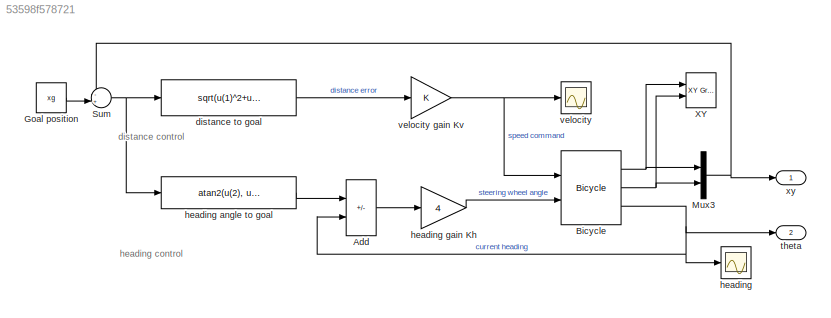
MODEL slx_53598f578721
KIND model
CONFIG AbsTol = auto
CONFIG EnableMultiTasking = on
CONFIG FixedStep = auto
CONFIG MaxStep = auto
CONFIG MinStep = auto
CONFIG RelTol = 1e-3
CONFIG SampleTimeConstraint = Unconstrained
CONFIG SolverName = ode45
CONFIG StartTime = 0.0
CONFIG StopTime = 15.0
BLOCK [Sum] Add
  IconShape = rectangular
  Inputs = +-
  Ports = [2, 1]
BLOCK [Reference] Bicycle  REF=roblocks/Vehicles/Bicycle  (lib defined in mdl_2a292b13c81b, mdl_69400f8cfe22, +12 more)
  Ports = [2, 3]
  SourceBlock = roblocks/Vehicles/Bicycle
BLOCK [Constant] Goal position
  Value = xg
BLOCK [Mux] Mux3
  DisplayOption = bar
  Inputs = 2
  Ports = [2, 1]
BLOCK [Sum] Sum
  Inputs = -+|
  Ports = [2, 1]
BLOCK [Reference] XY  REF=simulink/Sinks/XY Graph
  Ports = [2]
  SourceBlock = simulink/Sinks/XY Graph
  SourceProductBaseCode = SL
  SourceType = XY scope.
BLOCK [Fcn] distance to goal
  Expr = sqrt(u(1)^2+u(2)^2)
BLOCK [Scope] heading
  Floating = off
  NumInputPorts = 1
  Ports = [1]
  ScopeSpecificationString = Simulink.scopes.TimeScopeBlockCfg('CurrentConfiguration', extmgr.ConfigurationSet(extmgr.Configuration('Core','General UI',true),extmgr.Configuration('Core','Source UI',true),extmgr.Configuration('Sources','WiredSimulink',true,'DataLoggingSaveFormat','StructureWithTime','DataLoggingLimitDataPoints',true,'DataLoggingDecimation','1','DataLoggingDecimateData',true),extmgr.Configuration('Visuals','Tim...<+1675ch>
BLOCK [Fcn] heading angle to goal
  Expr = atan2(u(2), u(1))
BLOCK [Gain] heading gain Kh
  Gain = 4
BLOCK [Outport] theta 
  Port = 2
BLOCK [Scope] velocity
  Floating = off
  NumInputPorts = 1
  Ports = [1]
  ScopeSpecificationString = Simulink.scopes.TimeScopeBlockCfg('CurrentConfiguration', extmgr.ConfigurationSet(extmgr.Configuration('Core','General UI',true),extmgr.Configuration('Core','Source UI',true),extmgr.Configuration('Sources','WiredSimulink',true,'DataLoggingVariableName','ScopeData1','DataLoggingSaveFormat','StructureWithTime','DataLoggingLimitDataPoints',true,'DataLoggingDecimation','1'),extmgr.Configuration('Visua...<+1680ch>
BLOCK [Gain] velocity gain Kv
BLOCK [Outport] xy
ANNOTATION (root): distance control
ANNOTATION (root): heading control
LINE Add:1 -> heading gain Kh:1
NET Bicycle:1 -> Mux3:1, XY:1
NET Bicycle:2 -> Mux3:2, XY:2
NET Bicycle:3 -> Add:2, heading:1, theta :1
LINE Goal position:1 -> Sum:2
NET Mux3:1 -> Sum:1, xy:1
NET Sum:1 -> distance to goal:1, heading angle to goal:1
LINE distance to goal:1 -> velocity gain Kv:1
LINE heading angle to goal:1 -> Add:1
LINE heading gain Kh:1 -> Bicycle:2
NET velocity gain Kv:1 -> Bicycle:1, velocity:1
note: NET lines group one-source signal fan-out (src -> all destinations, sorted); 1:1 wires keep LINE
